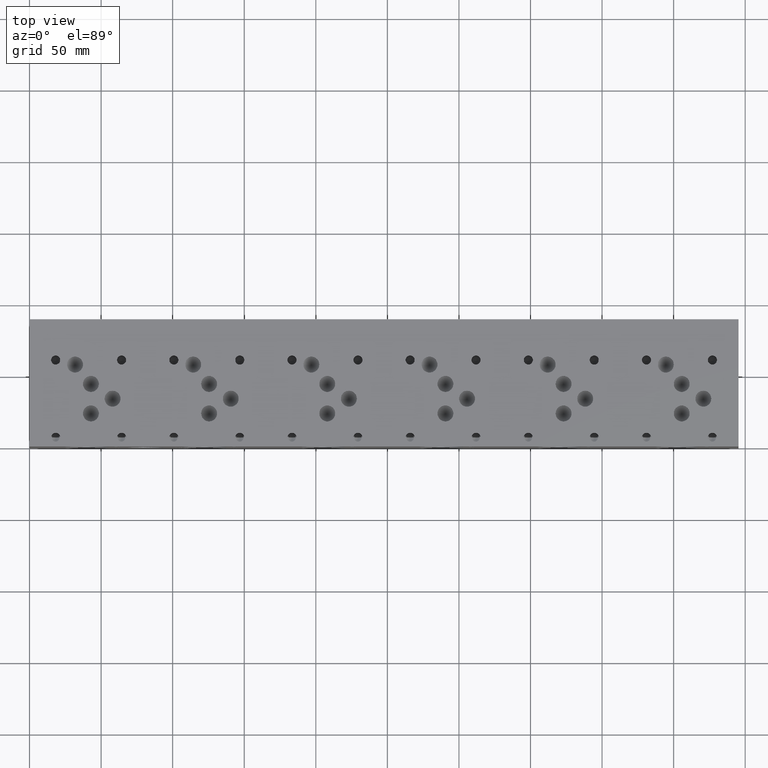
[diagram: clean part render]
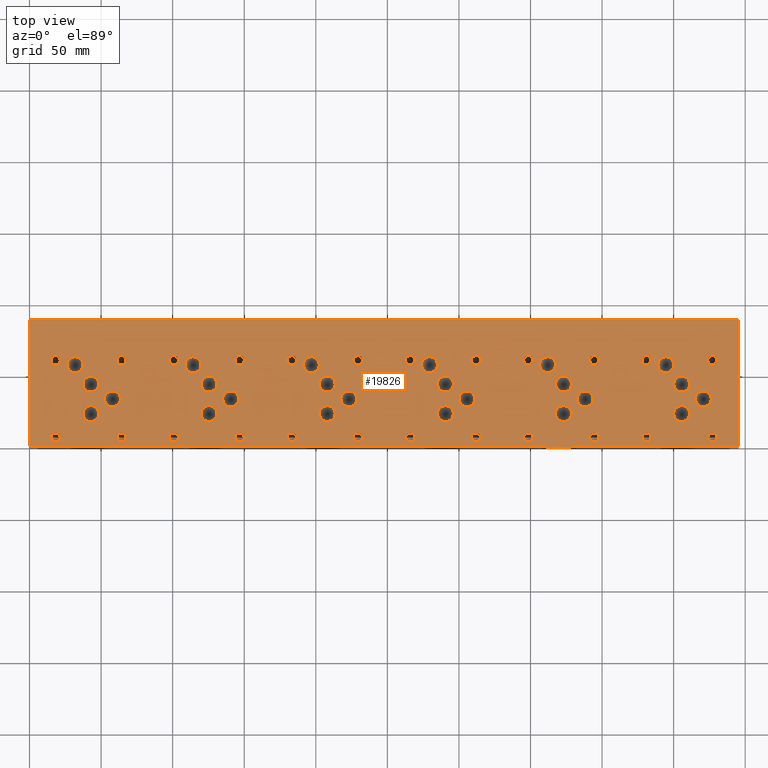
[diagram: same view with one face highlighted and labeled with its STEP entity id]
A machine part, top view. The second image highlights one B-rep face of the part: STEP entity #19826.
In plain terms, the highlighted planar face has unit normal (0, 0, 1).
Its self-contained STEP definition (entity closure, byte-faithful):
#692=CIRCLE('',#20871,3.175);
#693=CIRCLE('',#20872,3.175);
#699=CIRCLE('',#20882,3.175);
#700=CIRCLE('',#20883,3.175);
#706=CIRCLE('',#20893,3.175);
#707=CIRCLE('',#20894,3.175);
#713=CIRCLE('',#20904,3.175);
#714=CIRCLE('',#20905,3.175);
#720=CIRCLE('',#20915,3.175);
#721=CIRCLE('',#20916,3.175);
#727=CIRCLE('',#20926,3.175);
#728=CIRCLE('',#20927,3.175);
#734=CIRCLE('',#20937,3.175);
#735=CIRCLE('',#20938,3.175);
#741=CIRCLE('',#20948,3.175);
#742=CIRCLE('',#20949,3.175);
#748=CIRCLE('',#20959,3.175);
#749=CIRCLE('',#20960,3.175);
#755=CIRCLE('',#20970,3.175);
#756=CIRCLE('',#20971,3.175);
#762=CIRCLE('',#20981,3.175);
#763=CIRCLE('',#20982,3.175);
#769=CIRCLE('',#20992,3.175);
#770=CIRCLE('',#20993,3.175);
#776=CIRCLE('',#21003,3.175);
#777=CIRCLE('',#21004,3.175);
#783=CIRCLE('',#21014,3.175);
#784=CIRCLE('',#21015,3.175);
#790=CIRCLE('',#21025,3.175);
#791=CIRCLE('',#21026,3.175);
#797=CIRCLE('',#21036,3.175);
#798=CIRCLE('',#21037,3.175);
#804=CIRCLE('',#21047,3.175);
#805=CIRCLE('',#21048,3.175);
#811=CIRCLE('',#21058,3.175);
#812=CIRCLE('',#21059,3.175);
#818=CIRCLE('',#21069,3.175);
#819=CIRCLE('',#21070,3.175);
#825=CIRCLE('',#21080,3.175);
#826=CIRCLE('',#21081,3.175);
#829=CIRCLE('',#21087,5.5626);
#830=CIRCLE('',#21088,5.5626);
#833=CIRCLE('',#21093,5.5626);
#834=CIRCLE('',#21094,5.5626);
#837=CIRCLE('',#21099,5.5626);
#838=CIRCLE('',#21100,5.5626);
#841=CIRCLE('',#21105,5.5626);
#842=CIRCLE('',#21106,5.5626);
#845=CIRCLE('',#21111,5.5626);
#846=CIRCLE('',#21112,5.5626);
#849=CIRCLE('',#21117,5.5626);
#850=CIRCLE('',#21118,5.5626);
#853=CIRCLE('',#21123,5.5626);
#854=CIRCLE('',#21124,5.5626);
#857=CIRCLE('',#21129,5.5626);
#858=CIRCLE('',#21130,5.5626);
#861=CIRCLE('',#21135,5.5626);
#862=CIRCLE('',#21136,5.5626);
#865=CIRCLE('',#21141,5.5626);
#866=CIRCLE('',#21142,5.5626);
#869=CIRCLE('',#21147,5.5626);
#870=CIRCLE('',#21148,5.5626);
#873=CIRCLE('',#21153,5.5626);
#874=CIRCLE('',#21154,5.5626);
#877=CIRCLE('',#21159,5.5626);
#878=CIRCLE('',#21160,5.5626);
#881=CIRCLE('',#21165,5.5626);
#882=CIRCLE('',#21166,5.5626);
#885=CIRCLE('',#21171,5.5626);
#886=CIRCLE('',#21172,5.5626);
#889=CIRCLE('',#21177,5.5626);
#890=CIRCLE('',#21178,5.5626);
#893=CIRCLE('',#21183,5.5626);
#894=CIRCLE('',#21184,5.5626);
#897=CIRCLE('',#21189,5.5626);
#898=CIRCLE('',#21190,5.5626);
#901=CIRCLE('',#21195,5.5626);
#902=CIRCLE('',#21196,5.5626);
#905=CIRCLE('',#21201,5.5626);
#906=CIRCLE('',#21202,5.5626);
#909=CIRCLE('',#21207,5.5626);
#910=CIRCLE('',#21208,5.5626);
#913=CIRCLE('',#21213,5.5626);
#914=CIRCLE('',#21214,5.5626);
#917=CIRCLE('',#21219,5.5626);
#918=CIRCLE('',#21220,5.5626);
#921=CIRCLE('',#21225,5.5626);
#922=CIRCLE('',#21226,5.5626);
#928=CIRCLE('',#21235,3.175);
#929=CIRCLE('',#21236,3.175);
#935=CIRCLE('',#21246,3.175);
#936=CIRCLE('',#21247,3.175);
#942=CIRCLE('',#21257,3.175);
#943=CIRCLE('',#21258,3.175);
#949=CIRCLE('',#21268,3.175);
#950=CIRCLE('',#21269,3.175);
#1105=FACE_BOUND('',#4115,.T.);
#1106=FACE_BOUND('',#4116,.T.);
#1107=FACE_BOUND('',#4117,.T.);
#1108=FACE_BOUND('',#4118,.T.);
#1109=FACE_BOUND('',#4119,.T.);
#1110=FACE_BOUND('',#4120,.T.);
#1111=FACE_BOUND('',#4121,.T.);
#1112=FACE_BOUND('',#4122,.T.);
#1113=FACE_BOUND('',#4123,.T.);
#1114=FACE_BOUND('',#4124,.T.);
#1115=FACE_BOUND('',#4125,.T.);
#1116=FACE_BOUND('',#4126,.T.);
#1117=FACE_BOUND('',#4127,.T.);
#1118=FACE_BOUND('',#4128,.T.);
#1119=FACE_BOUND('',#4129,.T.);
#1120=FACE_BOUND('',#4130,.T.);
#1121=FACE_BOUND('',#4131,.T.);
#1122=FACE_BOUND('',#4132,.T.);
#1123=FACE_BOUND('',#4133,.T.);
#1124=FACE_BOUND('',#4134,.T.);
#1125=FACE_BOUND('',#4135,.T.);
#1126=FACE_BOUND('',#4136,.T.);
#1127=FACE_BOUND('',#4137,.T.);
#1128=FACE_BOUND('',#4138,.T.);
#1129=FACE_BOUND('',#4139,.T.);
#1130=FACE_BOUND('',#4140,.T.);
#1131=FACE_BOUND('',#4141,.T.);
#1132=FACE_BOUND('',#4142,.T.);
#1133=FACE_BOUND('',#4143,.T.);
#1134=FACE_BOUND('',#4144,.T.);
#1135=FACE_BOUND('',#4145,.T.);
#1136=FACE_BOUND('',#4146,.T.);
#1137=FACE_BOUND('',#4147,.T.);
#1138=FACE_BOUND('',#4148,.T.);
#1139=FACE_BOUND('',#4149,.T.);
#1140=FACE_BOUND('',#4150,.T.);
#1141=FACE_BOUND('',#4151,.T.);
#1142=FACE_BOUND('',#4152,.T.);
#1143=FACE_BOUND('',#4153,.T.);
#1144=FACE_BOUND('',#4154,.T.);
#1145=FACE_BOUND('',#4155,.T.);
#1146=FACE_BOUND('',#4156,.T.);
#1147=FACE_BOUND('',#4157,.T.);
#1148=FACE_BOUND('',#4158,.T.);
#1149=FACE_BOUND('',#4159,.T.);
#1150=FACE_BOUND('',#4160,.T.);
#1151=FACE_BOUND('',#4161,.T.);
#1152=FACE_BOUND('',#4162,.T.);
#2923=FACE_OUTER_BOUND('',#4114,.T.);
#4114=EDGE_LOOP('',(#17545,#17546,#17547,#17548));
#4115=EDGE_LOOP('',(#17549,#17550));
#4116=EDGE_LOOP('',(#17551,#17552));
#4117=EDGE_LOOP('',(#17553,#17554));
#4118=EDGE_LOOP('',(#17555,#17556));
#4119=EDGE_LOOP('',(#17557,#17558));
#4120=EDGE_LOOP('',(#17559,#17560));
#4121=EDGE_LOOP('',(#17561,#17562));
#4122=EDGE_LOOP('',(#17563,#17564));
#4123=EDGE_LOOP('',(#17565,#17566));
#4124=EDGE_LOOP('',(#17567,#17568));
#4125=EDGE_LOOP('',(#17569,#17570));
#4126=EDGE_LOOP('',(#17571,#17572));
#4127=EDGE_LOOP('',(#17573,#17574));
#4128=EDGE_LOOP('',(#17575,#17576));
#4129=EDGE_LOOP('',(#17577,#17578));
#4130=EDGE_LOOP('',(#17579,#17580));
#4131=EDGE_LOOP('',(#17581,#17582));
#4132=EDGE_LOOP('',(#17583,#17584));
#4133=EDGE_LOOP('',(#17585,#17586));
#4134=EDGE_LOOP('',(#17587,#17588));
#4135=EDGE_LOOP('',(#17589,#17590));
#4136=EDGE_LOOP('',(#17591,#17592));
#4137=EDGE_LOOP('',(#17593,#17594));
#4138=EDGE_LOOP('',(#17595,#17596));
#4139=EDGE_LOOP('',(#17597,#17598));
#4140=EDGE_LOOP('',(#17599,#17600));
#4141=EDGE_LOOP('',(#17601,#17602));
#4142=EDGE_LOOP('',(#17603,#17604));
#4143=EDGE_LOOP('',(#17605,#17606));
#4144=EDGE_LOOP('',(#17607,#17608));
#4145=EDGE_LOOP('',(#17609,#17610));
#4146=EDGE_LOOP('',(#17611,#17612));
#4147=EDGE_LOOP('',(#17613,#17614));
#4148=EDGE_LOOP('',(#17615,#17616));
#4149=EDGE_LOOP('',(#17617,#17618));
#4150=EDGE_LOOP('',(#17619,#17620));
#4151=EDGE_LOOP('',(#17621,#17622));
#4152=EDGE_LOOP('',(#17623,#17624));
#4153=EDGE_LOOP('',(#17625,#17626));
#4154=EDGE_LOOP('',(#17627,#17628));
#4155=EDGE_LOOP('',(#17629,#17630));
#4156=EDGE_LOOP('',(#17631,#17632));
#4157=EDGE_LOOP('',(#17633,#17634));
#4158=EDGE_LOOP('',(#17635,#17636));
#4159=EDGE_LOOP('',(#17637,#17638));
#4160=EDGE_LOOP('',(#17639,#17640));
#4161=EDGE_LOOP('',(#17641,#17642));
#4162=EDGE_LOOP('',(#17643,#17644));
#4222=LINE('',#26038,#5853);
#4282=LINE('',#26313,#5913);
#4591=LINE('',#29047,#6222);
#5794=LINE('',#34693,#7425);
#5853=VECTOR('',#21375,10.);
#5913=VECTOR('',#21489,10.);
#6222=VECTOR('',#21960,10.);
#7425=VECTOR('',#25771,10.);
#7476=VERTEX_POINT('',#26035);
#7477=VERTEX_POINT('',#26037);
#7536=VERTEX_POINT('',#26310);
#7537=VERTEX_POINT('',#26312);
#9051=VERTEX_POINT('',#33865);
#9052=VERTEX_POINT('',#33866);
#9059=VERTEX_POINT('',#33887);
#9060=VERTEX_POINT('',#33888);
#9067=VERTEX_POINT('',#33909);
#9068=VERTEX_POINT('',#33910);
#9075=VERTEX_POINT('',#33931);
#9076=VERTEX_POINT('',#33932);
#9083=VERTEX_POINT('',#33953);
#9084=VERTEX_POINT('',#33954);
#9091=VERTEX_POINT('',#33975);
#9092=VERTEX_POINT('',#33976);
#9099=VERTEX_POINT('',#33997);
#9100=VERTEX_POINT('',#33998);
#9107=VERTEX_POINT('',#34019);
#9108=VERTEX_POINT('',#34020);
#9115=VERTEX_POINT('',#34041);
#9116=VERTEX_POINT('',#34042);
#9123=VERTEX_POINT('',#34063);
#9124=VERTEX_POINT('',#34064);
#9131=VERTEX_POINT('',#34085);
#9132=VERTEX_POINT('',#34086);
#9139=VERTEX_POINT('',#34107);
#9140=VERTEX_POINT('',#34108);
#9147=VERTEX_POINT('',#34129);
#9148=VERTEX_POINT('',#34130);
#9155=VERTEX_POINT('',#34151);
#9156=VERTEX_POINT('',#34152);
#9163=VERTEX_POINT('',#34173);
#9164=VERTEX_POINT('',#34174);
#9171=VERTEX_POINT('',#34195);
#9172=VERTEX_POINT('',#34196);
#9179=VERTEX_POINT('',#34217);
#9180=VERTEX_POINT('',#34218);
#9187=VERTEX_POINT('',#34239);
#9188=VERTEX_POINT('',#34240);
#9195=VERTEX_POINT('',#34261);
#9196=VERTEX_POINT('',#34262);
#9203=VERTEX_POINT('',#34283);
#9204=VERTEX_POINT('',#34284);
#9208=VERTEX_POINT('',#34298);
#9209=VERTEX_POINT('',#34299);
#9213=VERTEX_POINT('',#34311);
#9214=VERTEX_POINT('',#34312);
#9218=VERTEX_POINT('',#34324);
#9219=VERTEX_POINT('',#34325);
#9223=VERTEX_POINT('',#34337);
#9224=VERTEX_POINT('',#34338);
#9228=VERTEX_POINT('',#34350);
#9229=VERTEX_POINT('',#34351);
#9233=VERTEX_POINT('',#34363);
#9234=VERTEX_POINT('',#34364);
#9238=VERTEX_POINT('',#34376);
#9239=VERTEX_POINT('',#34377);
#9243=VERTEX_POINT('',#34389);
#9244=VERTEX_POINT('',#34390);
#9248=VERTEX_POINT('',#34402);
#9249=VERTEX_POINT('',#34403);
#9253=VERTEX_POINT('',#34415);
#9254=VERTEX_POINT('',#34416);
#9258=VERTEX_POINT('',#34428);
#9259=VERTEX_POINT('',#34429);
#9263=VERTEX_POINT('',#34441);
#9264=VERTEX_POINT('',#34442);
#9268=VERTEX_POINT('',#34454);
#9269=VERTEX_POINT('',#34455);
#9273=VERTEX_POINT('',#34467);
#9274=VERTEX_POINT('',#34468);
#9278=VERTEX_POINT('',#34480);
#9279=VERTEX_POINT('',#34481);
#9283=VERTEX_POINT('',#34493);
#9284=VERTEX_POINT('',#34494);
#9288=VERTEX_POINT('',#34506);
#9289=VERTEX_POINT('',#34507);
#9293=VERTEX_POINT('',#34519);
#9294=VERTEX_POINT('',#34520);
#9298=VERTEX_POINT('',#34532);
#9299=VERTEX_POINT('',#34533);
#9303=VERTEX_POINT('',#34545);
#9304=VERTEX_POINT('',#34546);
#9308=VERTEX_POINT('',#34558);
#9309=VERTEX_POINT('',#34559);
#9313=VERTEX_POINT('',#34571);
#9314=VERTEX_POINT('',#34572);
#9318=VERTEX_POINT('',#34584);
#9319=VERTEX_POINT('',#34585);
#9323=VERTEX_POINT('',#34597);
#9324=VERTEX_POINT('',#34598);
#9331=VERTEX_POINT('',#34617);
#9332=VERTEX_POINT('',#34618);
#9339=VERTEX_POINT('',#34639);
#9340=VERTEX_POINT('',#34640);
#9347=VERTEX_POINT('',#34661);
#9348=VERTEX_POINT('',#34662);
#9355=VERTEX_POINT('',#34683);
#9356=VERTEX_POINT('',#34684);
#9431=EDGE_CURVE('',#7477,#7476,#4222,.T.);
#9515=EDGE_CURVE('',#7537,#7536,#4282,.T.);
#10078=EDGE_CURVE('',#7536,#7477,#4591,.T.);
#11741=EDGE_CURVE('',#9051,#9052,#692,.T.);
#11742=EDGE_CURVE('',#9052,#9051,#693,.T.);
#11751=EDGE_CURVE('',#9059,#9060,#699,.T.);
#11752=EDGE_CURVE('',#9060,#9059,#700,.T.);
#11761=EDGE_CURVE('',#9067,#9068,#706,.T.);
#11762=EDGE_CURVE('',#9068,#9067,#707,.T.);
#11771=EDGE_CURVE('',#9075,#9076,#713,.T.);
#11772=EDGE_CURVE('',#9076,#9075,#714,.T.);
#11781=EDGE_CURVE('',#9083,#9084,#720,.T.);
#11782=EDGE_CURVE('',#9084,#9083,#721,.T.);
#11791=EDGE_CURVE('',#9091,#9092,#727,.T.);
#11792=EDGE_CURVE('',#9092,#9091,#728,.T.);
#11801=EDGE_CURVE('',#9099,#9100,#734,.T.);
#11802=EDGE_CURVE('',#9100,#9099,#735,.T.);
#11811=EDGE_CURVE('',#9107,#9108,#741,.T.);
#11812=EDGE_CURVE('',#9108,#9107,#742,.T.);
#11821=EDGE_CURVE('',#9115,#9116,#748,.T.);
#11822=EDGE_CURVE('',#9116,#9115,#749,.T.);
#11831=EDGE_CURVE('',#9123,#9124,#755,.T.);
#11832=EDGE_CURVE('',#9124,#9123,#756,.T.);
#11841=EDGE_CURVE('',#9131,#9132,#762,.T.);
#11842=EDGE_CURVE('',#9132,#9131,#763,.T.);
#11851=EDGE_CURVE('',#9139,#9140,#769,.T.);
#11852=EDGE_CURVE('',#9140,#9139,#770,.T.);
#11861=EDGE_CURVE('',#9147,#9148,#776,.T.);
#11862=EDGE_CURVE('',#9148,#9147,#777,.T.);
#11871=EDGE_CURVE('',#9155,#9156,#783,.T.);
#11872=EDGE_CURVE('',#9156,#9155,#784,.T.);
#11881=EDGE_CURVE('',#9163,#9164,#790,.T.);
#11882=EDGE_CURVE('',#9164,#9163,#791,.T.);
#11891=EDGE_CURVE('',#9171,#9172,#797,.T.);
#11892=EDGE_CURVE('',#9172,#9171,#798,.T.);
#11901=EDGE_CURVE('',#9179,#9180,#804,.T.);
#11902=EDGE_CURVE('',#9180,#9179,#805,.T.);
#11911=EDGE_CURVE('',#9187,#9188,#811,.T.);
#11912=EDGE_CURVE('',#9188,#9187,#812,.T.);
#11921=EDGE_CURVE('',#9195,#9196,#818,.T.);
#11922=EDGE_CURVE('',#9196,#9195,#819,.T.);
#11931=EDGE_CURVE('',#9203,#9204,#825,.T.);
#11932=EDGE_CURVE('',#9204,#9203,#826,.T.);
#11938=EDGE_CURVE('',#9208,#9209,#829,.T.);
#11939=EDGE_CURVE('',#9209,#9208,#830,.T.);
#11944=EDGE_CURVE('',#9213,#9214,#833,.T.);
#11945=EDGE_CURVE('',#9214,#9213,#834,.T.);
#11950=EDGE_CURVE('',#9218,#9219,#837,.T.);
#11951=EDGE_CURVE('',#9219,#9218,#838,.T.);
#11956=EDGE_CURVE('',#9223,#9224,#841,.T.);
#11957=EDGE_CURVE('',#9224,#9223,#842,.T.);
#11962=EDGE_CURVE('',#9228,#9229,#845,.T.);
#11963=EDGE_CURVE('',#9229,#9228,#846,.T.);
#11968=EDGE_CURVE('',#9233,#9234,#849,.T.);
#11969=EDGE_CURVE('',#9234,#9233,#850,.T.);
#11974=EDGE_CURVE('',#9238,#9239,#853,.T.);
#11975=EDGE_CURVE('',#9239,#9238,#854,.T.);
#11980=EDGE_CURVE('',#9243,#9244,#857,.T.);
#11981=EDGE_CURVE('',#9244,#9243,#858,.T.);
#11986=EDGE_CURVE('',#9248,#9249,#861,.T.);
#11987=EDGE_CURVE('',#9249,#9248,#862,.T.);
#11992=EDGE_CURVE('',#9253,#9254,#865,.T.);
#11993=EDGE_CURVE('',#9254,#9253,#866,.T.);
#11998=EDGE_CURVE('',#9258,#9259,#869,.T.);
#11999=EDGE_CURVE('',#9259,#9258,#870,.T.);
#12004=EDGE_CURVE('',#9263,#9264,#873,.T.);
#12005=EDGE_CURVE('',#9264,#9263,#874,.T.);
#12010=EDGE_CURVE('',#9268,#9269,#877,.T.);
#12011=EDGE_CURVE('',#9269,#9268,#878,.T.);
#12016=EDGE_CURVE('',#9273,#9274,#881,.T.);
#12017=EDGE_CURVE('',#9274,#9273,#882,.T.);
#12022=EDGE_CURVE('',#9278,#9279,#885,.T.);
#12023=EDGE_CURVE('',#9279,#9278,#886,.T.);
#12028=EDGE_CURVE('',#9283,#9284,#889,.T.);
#12029=EDGE_CURVE('',#9284,#9283,#890,.T.);
#12034=EDGE_CURVE('',#9288,#9289,#893,.T.);
#12035=EDGE_CURVE('',#9289,#9288,#894,.T.);
#12040=EDGE_CURVE('',#9293,#9294,#897,.T.);
#12041=EDGE_CURVE('',#9294,#9293,#898,.T.);
#12046=EDGE_CURVE('',#9298,#9299,#901,.T.);
#12047=EDGE_CURVE('',#9299,#9298,#902,.T.);
#12052=EDGE_CURVE('',#9303,#9304,#905,.T.);
#12053=EDGE_CURVE('',#9304,#9303,#906,.T.);
#12058=EDGE_CURVE('',#9308,#9309,#909,.T.);
#12059=EDGE_CURVE('',#9309,#9308,#910,.T.);
#12064=EDGE_CURVE('',#9313,#9314,#913,.T.);
#12065=EDGE_CURVE('',#9314,#9313,#914,.T.);
#12070=EDGE_CURVE('',#9318,#9319,#917,.T.);
#12071=EDGE_CURVE('',#9319,#9318,#918,.T.);
#12076=EDGE_CURVE('',#9323,#9324,#921,.T.);
#12077=EDGE_CURVE('',#9324,#9323,#922,.T.);
#12085=EDGE_CURVE('',#9331,#9332,#928,.T.);
#12086=EDGE_CURVE('',#9332,#9331,#929,.T.);
#12095=EDGE_CURVE('',#9339,#9340,#935,.T.);
#12096=EDGE_CURVE('',#9340,#9339,#936,.T.);
#12105=EDGE_CURVE('',#9347,#9348,#942,.T.);
#12106=EDGE_CURVE('',#9348,#9347,#943,.T.);
#12115=EDGE_CURVE('',#9355,#9356,#949,.T.);
#12116=EDGE_CURVE('',#9356,#9355,#950,.T.);
#12120=EDGE_CURVE('',#7476,#7537,#5794,.T.);
#17545=ORIENTED_EDGE('',*,*,#10078,.T.);
#17546=ORIENTED_EDGE('',*,*,#9431,.T.);
#17547=ORIENTED_EDGE('',*,*,#12120,.T.);
#17548=ORIENTED_EDGE('',*,*,#9515,.T.);
#17549=ORIENTED_EDGE('',*,*,#11741,.T.);
#17550=ORIENTED_EDGE('',*,*,#11742,.T.);
#17551=ORIENTED_EDGE('',*,*,#11751,.T.);
#17552=ORIENTED_EDGE('',*,*,#11752,.T.);
#17553=ORIENTED_EDGE('',*,*,#11761,.T.);
#17554=ORIENTED_EDGE('',*,*,#11762,.T.);
#17555=ORIENTED_EDGE('',*,*,#11771,.T.);
#17556=ORIENTED_EDGE('',*,*,#11772,.T.);
#17557=ORIENTED_EDGE('',*,*,#11781,.T.);
#17558=ORIENTED_EDGE('',*,*,#11782,.T.);
#17559=ORIENTED_EDGE('',*,*,#11791,.T.);
#17560=ORIENTED_EDGE('',*,*,#11792,.T.);
#17561=ORIENTED_EDGE('',*,*,#11801,.T.);
#17562=ORIENTED_EDGE('',*,*,#11802,.T.);
#17563=ORIENTED_EDGE('',*,*,#11811,.T.);
#17564=ORIENTED_EDGE('',*,*,#11812,.T.);
#17565=ORIENTED_EDGE('',*,*,#11821,.T.);
#17566=ORIENTED_EDGE('',*,*,#11822,.T.);
#17567=ORIENTED_EDGE('',*,*,#11831,.T.);
#17568=ORIENTED_EDGE('',*,*,#11832,.T.);
#17569=ORIENTED_EDGE('',*,*,#11841,.T.);
#17570=ORIENTED_EDGE('',*,*,#11842,.T.);
#17571=ORIENTED_EDGE('',*,*,#11851,.T.);
#17572=ORIENTED_EDGE('',*,*,#11852,.T.);
#17573=ORIENTED_EDGE('',*,*,#11861,.T.);
#17574=ORIENTED_EDGE('',*,*,#11862,.T.);
#17575=ORIENTED_EDGE('',*,*,#11871,.T.);
#17576=ORIENTED_EDGE('',*,*,#11872,.T.);
#17577=ORIENTED_EDGE('',*,*,#11881,.T.);
#17578=ORIENTED_EDGE('',*,*,#11882,.T.);
#17579=ORIENTED_EDGE('',*,*,#11891,.T.);
#17580=ORIENTED_EDGE('',*,*,#11892,.T.);
#17581=ORIENTED_EDGE('',*,*,#11901,.T.);
#17582=ORIENTED_EDGE('',*,*,#11902,.T.);
#17583=ORIENTED_EDGE('',*,*,#11911,.T.);
#17584=ORIENTED_EDGE('',*,*,#11912,.T.);
#17585=ORIENTED_EDGE('',*,*,#11921,.T.);
#17586=ORIENTED_EDGE('',*,*,#11922,.T.);
#17587=ORIENTED_EDGE('',*,*,#11931,.T.);
#17588=ORIENTED_EDGE('',*,*,#11932,.T.);
#17589=ORIENTED_EDGE('',*,*,#11938,.T.);
#17590=ORIENTED_EDGE('',*,*,#11939,.T.);
#17591=ORIENTED_EDGE('',*,*,#11944,.T.);
#17592=ORIENTED_EDGE('',*,*,#11945,.T.);
#17593=ORIENTED_EDGE('',*,*,#11950,.T.);
#17594=ORIENTED_EDGE('',*,*,#11951,.T.);
#17595=ORIENTED_EDGE('',*,*,#11956,.T.);
#17596=ORIENTED_EDGE('',*,*,#11957,.T.);
#17597=ORIENTED_EDGE('',*,*,#11962,.T.);
#17598=ORIENTED_EDGE('',*,*,#11963,.T.);
#17599=ORIENTED_EDGE('',*,*,#11968,.T.);
#17600=ORIENTED_EDGE('',*,*,#11969,.T.);
#17601=ORIENTED_EDGE('',*,*,#11974,.T.);
#17602=ORIENTED_EDGE('',*,*,#11975,.T.);
#17603=ORIENTED_EDGE('',*,*,#11980,.T.);
#17604=ORIENTED_EDGE('',*,*,#11981,.T.);
#17605=ORIENTED_EDGE('',*,*,#11986,.T.);
#17606=ORIENTED_EDGE('',*,*,#11987,.T.);
#17607=ORIENTED_EDGE('',*,*,#11992,.T.);
#17608=ORIENTED_EDGE('',*,*,#11993,.T.);
#17609=ORIENTED_EDGE('',*,*,#11998,.T.);
#17610=ORIENTED_EDGE('',*,*,#11999,.T.);
#17611=ORIENTED_EDGE('',*,*,#12004,.T.);
#17612=ORIENTED_EDGE('',*,*,#12005,.T.);
#17613=ORIENTED_EDGE('',*,*,#12010,.T.);
#17614=ORIENTED_EDGE('',*,*,#12011,.T.);
#17615=ORIENTED_EDGE('',*,*,#12016,.T.);
#17616=ORIENTED_EDGE('',*,*,#12017,.T.);
#17617=ORIENTED_EDGE('',*,*,#12022,.T.);
#17618=ORIENTED_EDGE('',*,*,#12023,.T.);
#17619=ORIENTED_EDGE('',*,*,#12028,.T.);
#17620=ORIENTED_EDGE('',*,*,#12029,.T.);
#17621=ORIENTED_EDGE('',*,*,#12034,.T.);
#17622=ORIENTED_EDGE('',*,*,#12035,.T.);
#17623=ORIENTED_EDGE('',*,*,#12040,.T.);
#17624=ORIENTED_EDGE('',*,*,#12041,.T.);
#17625=ORIENTED_EDGE('',*,*,#12046,.T.);
#17626=ORIENTED_EDGE('',*,*,#12047,.T.);
#17627=ORIENTED_EDGE('',*,*,#12052,.T.);
#17628=ORIENTED_EDGE('',*,*,#12053,.T.);
#17629=ORIENTED_EDGE('',*,*,#12058,.T.);
#17630=ORIENTED_EDGE('',*,*,#12059,.T.);
#17631=ORIENTED_EDGE('',*,*,#12064,.T.);
#17632=ORIENTED_EDGE('',*,*,#12065,.T.);
#17633=ORIENTED_EDGE('',*,*,#12070,.T.);
#17634=ORIENTED_EDGE('',*,*,#12071,.T.);
#17635=ORIENTED_EDGE('',*,*,#12076,.T.);
#17636=ORIENTED_EDGE('',*,*,#12077,.T.);
#17637=ORIENTED_EDGE('',*,*,#12085,.T.);
#17638=ORIENTED_EDGE('',*,*,#12086,.T.);
#17639=ORIENTED_EDGE('',*,*,#12095,.T.);
#17640=ORIENTED_EDGE('',*,*,#12096,.T.);
#17641=ORIENTED_EDGE('',*,*,#12105,.T.);
#17642=ORIENTED_EDGE('',*,*,#12106,.T.);
#17643=ORIENTED_EDGE('',*,*,#12115,.T.);
#17644=ORIENTED_EDGE('',*,*,#12116,.T.);
#18145=PLANE('',#21275);
#19826=ADVANCED_FACE('',(#2923,#1105,#1106,#1107,#1108,#1109,#1110,#1111,
#1112,#1113,#1114,#1115,#1116,#1117,#1118,#1119,#1120,#1121,#1122,#1123,
#1124,#1125,#1126,#1127,#1128,#1129,#1130,#1131,#1132,#1133,#1134,#1135,
#1136,#1137,#1138,#1139,#1140,#1141,#1142,#1143,#1144,#1145,#1146,#1147,
#1148,#1149,#1150,#1151,#1152),#18145,.T.);
#20871=AXIS2_PLACEMENT_3D('',#33867,#24847,#24848);
#20872=AXIS2_PLACEMENT_3D('',#33868,#24849,#24850);
#20882=AXIS2_PLACEMENT_3D('',#33889,#24872,#24873);
#20883=AXIS2_PLACEMENT_3D('',#33890,#24874,#24875);
#20893=AXIS2_PLACEMENT_3D('',#33911,#24897,#24898);
#20894=AXIS2_PLACEMENT_3D('',#33912,#24899,#24900);
#20904=AXIS2_PLACEMENT_3D('',#33933,#24922,#24923);
#20905=AXIS2_PLACEMENT_3D('',#33934,#24924,#24925);
#20915=AXIS2_PLACEMENT_3D('',#33955,#24947,#24948);
#20916=AXIS2_PLACEMENT_3D('',#33956,#24949,#24950);
#20926=AXIS2_PLACEMENT_3D('',#33977,#24972,#24973);
#20927=AXIS2_PLACEMENT_3D('',#33978,#24974,#24975);
#20937=AXIS2_PLACEMENT_3D('',#33999,#24997,#24998);
#20938=AXIS2_PLACEMENT_3D('',#34000,#24999,#25000);
#20948=AXIS2_PLACEMENT_3D('',#34021,#25022,#25023);
#20949=AXIS2_PLACEMENT_3D('',#34022,#25024,#25025);
#20959=AXIS2_PLACEMENT_3D('',#34043,#25047,#25048);
#20960=AXIS2_PLACEMENT_3D('',#34044,#25049,#25050);
#20970=AXIS2_PLACEMENT_3D('',#34065,#25072,#25073);
#20971=AXIS2_PLACEMENT_3D('',#34066,#25074,#25075);
#20981=AXIS2_PLACEMENT_3D('',#34087,#25097,#25098);
#20982=AXIS2_PLACEMENT_3D('',#34088,#25099,#25100);
#20992=AXIS2_PLACEMENT_3D('',#34109,#25122,#25123);
#20993=AXIS2_PLACEMENT_3D('',#34110,#25124,#25125);
#21003=AXIS2_PLACEMENT_3D('',#34131,#25147,#25148);
#21004=AXIS2_PLACEMENT_3D('',#34132,#25149,#25150);
#21014=AXIS2_PLACEMENT_3D('',#34153,#25172,#25173);
#21015=AXIS2_PLACEMENT_3D('',#34154,#25174,#25175);
#21025=AXIS2_PLACEMENT_3D('',#34175,#25197,#25198);
#21026=AXIS2_PLACEMENT_3D('',#34176,#25199,#25200);
#21036=AXIS2_PLACEMENT_3D('',#34197,#25222,#25223);
#21037=AXIS2_PLACEMENT_3D('',#34198,#25224,#25225);
#21047=AXIS2_PLACEMENT_3D('',#34219,#25247,#25248);
#21048=AXIS2_PLACEMENT_3D('',#34220,#25249,#25250);
#21058=AXIS2_PLACEMENT_3D('',#34241,#25272,#25273);
#21059=AXIS2_PLACEMENT_3D('',#34242,#25274,#25275);
#21069=AXIS2_PLACEMENT_3D('',#34263,#25297,#25298);
#21070=AXIS2_PLACEMENT_3D('',#34264,#25299,#25300);
#21080=AXIS2_PLACEMENT_3D('',#34285,#25322,#25323);
#21081=AXIS2_PLACEMENT_3D('',#34286,#25324,#25325);
#21087=AXIS2_PLACEMENT_3D('',#34300,#25339,#25340);
#21088=AXIS2_PLACEMENT_3D('',#34301,#25341,#25342);
#21093=AXIS2_PLACEMENT_3D('',#34313,#25353,#25354);
#21094=AXIS2_PLACEMENT_3D('',#34314,#25355,#25356);
#21099=AXIS2_PLACEMENT_3D('',#34326,#25367,#25368);
#21100=AXIS2_PLACEMENT_3D('',#34327,#25369,#25370);
#21105=AXIS2_PLACEMENT_3D('',#34339,#25381,#25382);
#21106=AXIS2_PLACEMENT_3D('',#34340,#25383,#25384);
#21111=AXIS2_PLACEMENT_3D('',#34352,#25395,#25396);
#21112=AXIS2_PLACEMENT_3D('',#34353,#25397,#25398);
#21117=AXIS2_PLACEMENT_3D('',#34365,#25409,#25410);
#21118=AXIS2_PLACEMENT_3D('',#34366,#25411,#25412);
#21123=AXIS2_PLACEMENT_3D('',#34378,#25423,#25424);
#21124=AXIS2_PLACEMENT_3D('',#34379,#25425,#25426);
#21129=AXIS2_PLACEMENT_3D('',#34391,#25437,#25438);
#21130=AXIS2_PLACEMENT_3D('',#34392,#25439,#25440);
#21135=AXIS2_PLACEMENT_3D('',#34404,#25451,#25452);
#21136=AXIS2_PLACEMENT_3D('',#34405,#25453,#25454);
#21141=AXIS2_PLACEMENT_3D('',#34417,#25465,#25466);
#21142=AXIS2_PLACEMENT_3D('',#34418,#25467,#25468);
#21147=AXIS2_PLACEMENT_3D('',#34430,#25479,#25480);
#21148=AXIS2_PLACEMENT_3D('',#34431,#25481,#25482);
#21153=AXIS2_PLACEMENT_3D('',#34443,#25493,#25494);
#21154=AXIS2_PLACEMENT_3D('',#34444,#25495,#25496);
#21159=AXIS2_PLACEMENT_3D('',#34456,#25507,#25508);
#21160=AXIS2_PLACEMENT_3D('',#34457,#25509,#25510);
#21165=AXIS2_PLACEMENT_3D('',#34469,#25521,#25522);
#21166=AXIS2_PLACEMENT_3D('',#34470,#25523,#25524);
#21171=AXIS2_PLACEMENT_3D('',#34482,#25535,#25536);
#21172=AXIS2_PLACEMENT_3D('',#34483,#25537,#25538);
#21177=AXIS2_PLACEMENT_3D('',#34495,#25549,#25550);
#21178=AXIS2_PLACEMENT_3D('',#34496,#25551,#25552);
#21183=AXIS2_PLACEMENT_3D('',#34508,#25563,#25564);
#21184=AXIS2_PLACEMENT_3D('',#34509,#25565,#25566);
#21189=AXIS2_PLACEMENT_3D('',#34521,#25577,#25578);
#21190=AXIS2_PLACEMENT_3D('',#34522,#25579,#25580);
#21195=AXIS2_PLACEMENT_3D('',#34534,#25591,#25592);
#21196=AXIS2_PLACEMENT_3D('',#34535,#25593,#25594);
#21201=AXIS2_PLACEMENT_3D('',#34547,#25605,#25606);
#21202=AXIS2_PLACEMENT_3D('',#34548,#25607,#25608);
#21207=AXIS2_PLACEMENT_3D('',#34560,#25619,#25620);
#21208=AXIS2_PLACEMENT_3D('',#34561,#25621,#25622);
#21213=AXIS2_PLACEMENT_3D('',#34573,#25633,#25634);
#21214=AXIS2_PLACEMENT_3D('',#34574,#25635,#25636);
#21219=AXIS2_PLACEMENT_3D('',#34586,#25647,#25648);
#21220=AXIS2_PLACEMENT_3D('',#34587,#25649,#25650);
#21225=AXIS2_PLACEMENT_3D('',#34599,#25661,#25662);
#21226=AXIS2_PLACEMENT_3D('',#34600,#25663,#25664);
#21235=AXIS2_PLACEMENT_3D('',#34619,#25683,#25684);
#21236=AXIS2_PLACEMENT_3D('',#34620,#25685,#25686);
#21246=AXIS2_PLACEMENT_3D('',#34641,#25708,#25709);
#21247=AXIS2_PLACEMENT_3D('',#34642,#25710,#25711);
#21257=AXIS2_PLACEMENT_3D('',#34663,#25733,#25734);
#21258=AXIS2_PLACEMENT_3D('',#34664,#25735,#25736);
#21268=AXIS2_PLACEMENT_3D('',#34685,#25758,#25759);
#21269=AXIS2_PLACEMENT_3D('',#34686,#25760,#25761);
#21275=AXIS2_PLACEMENT_3D('',#34696,#25776,#25777);
#21375=DIRECTION('',(0.,1.,0.));
#21489=DIRECTION('',(0.,-1.,0.));
#21960=DIRECTION('',(1.,0.,0.));
#24847=DIRECTION('center_axis',(0.,0.,-1.));
#24848=DIRECTION('ref_axis',(1.,0.,0.));
#24849=DIRECTION('center_axis',(0.,0.,-1.));
#24850=DIRECTION('ref_axis',(1.,0.,0.));
#24872=DIRECTION('center_axis',(0.,0.,-1.));
#24873=DIRECTION('ref_axis',(1.,0.,0.));
#24874=DIRECTION('center_axis',(0.,0.,-1.));
#24875=DIRECTION('ref_axis',(1.,0.,0.));
#24897=DIRECTION('center_axis',(0.,0.,-1.));
#24898=DIRECTION('ref_axis',(1.,0.,0.));
#24899=DIRECTION('center_axis',(0.,0.,-1.));
#24900=DIRECTION('ref_axis',(1.,0.,0.));
#24922=DIRECTION('center_axis',(0.,0.,-1.));
#24923=DIRECTION('ref_axis',(1.,0.,0.));
#24924=DIRECTION('center_axis',(0.,0.,-1.));
#24925=DIRECTION('ref_axis',(1.,0.,0.));
#24947=DIRECTION('center_axis',(0.,0.,-1.));
#24948=DIRECTION('ref_axis',(1.,0.,0.));
#24949=DIRECTION('center_axis',(0.,0.,-1.));
#24950=DIRECTION('ref_axis',(1.,0.,0.));
#24972=DIRECTION('center_axis',(0.,0.,-1.));
#24973=DIRECTION('ref_axis',(1.,0.,0.));
#24974=DIRECTION('center_axis',(0.,0.,-1.));
#24975=DIRECTION('ref_axis',(1.,0.,0.));
#24997=DIRECTION('center_axis',(0.,0.,-1.));
#24998=DIRECTION('ref_axis',(1.,0.,0.));
#24999=DIRECTION('center_axis',(0.,0.,-1.));
#25000=DIRECTION('ref_axis',(1.,0.,0.));
#25022=DIRECTION('center_axis',(0.,0.,-1.));
#25023=DIRECTION('ref_axis',(1.,0.,0.));
#25024=DIRECTION('center_axis',(0.,0.,-1.));
#25025=DIRECTION('ref_axis',(1.,0.,0.));
#25047=DIRECTION('center_axis',(0.,0.,-1.));
#25048=DIRECTION('ref_axis',(1.,0.,0.));
#25049=DIRECTION('center_axis',(0.,0.,-1.));
#25050=DIRECTION('ref_axis',(1.,0.,0.));
#25072=DIRECTION('center_axis',(0.,0.,-1.));
#25073=DIRECTION('ref_axis',(1.,0.,0.));
#25074=DIRECTION('center_axis',(0.,0.,-1.));
#25075=DIRECTION('ref_axis',(1.,0.,0.));
#25097=DIRECTION('center_axis',(0.,0.,-1.));
#25098=DIRECTION('ref_axis',(1.,0.,0.));
#25099=DIRECTION('center_axis',(0.,0.,-1.));
#25100=DIRECTION('ref_axis',(1.,0.,0.));
#25122=DIRECTION('center_axis',(0.,0.,-1.));
#25123=DIRECTION('ref_axis',(1.,0.,0.));
#25124=DIRECTION('center_axis',(0.,0.,-1.));
#25125=DIRECTION('ref_axis',(1.,0.,0.));
#25147=DIRECTION('center_axis',(0.,0.,-1.));
#25148=DIRECTION('ref_axis',(1.,0.,0.));
#25149=DIRECTION('center_axis',(0.,0.,-1.));
#25150=DIRECTION('ref_axis',(1.,0.,0.));
#25172=DIRECTION('center_axis',(0.,0.,-1.));
#25173=DIRECTION('ref_axis',(1.,0.,0.));
#25174=DIRECTION('center_axis',(0.,0.,-1.));
#25175=DIRECTION('ref_axis',(1.,0.,0.));
#25197=DIRECTION('center_axis',(0.,0.,-1.));
#25198=DIRECTION('ref_axis',(1.,0.,0.));
#25199=DIRECTION('center_axis',(0.,0.,-1.));
#25200=DIRECTION('ref_axis',(1.,0.,0.));
#25222=DIRECTION('center_axis',(0.,0.,-1.));
#25223=DIRECTION('ref_axis',(1.,0.,0.));
#25224=DIRECTION('center_axis',(0.,0.,-1.));
#25225=DIRECTION('ref_axis',(1.,0.,0.));
#25247=DIRECTION('center_axis',(0.,0.,-1.));
#25248=DIRECTION('ref_axis',(1.,0.,0.));
#25249=DIRECTION('center_axis',(0.,0.,-1.));
#25250=DIRECTION('ref_axis',(1.,0.,0.));
#25272=DIRECTION('center_axis',(0.,0.,-1.));
#25273=DIRECTION('ref_axis',(1.,0.,0.));
#25274=DIRECTION('center_axis',(0.,0.,-1.));
#25275=DIRECTION('ref_axis',(1.,0.,0.));
#25297=DIRECTION('center_axis',(0.,0.,-1.));
#25298=DIRECTION('ref_axis',(1.,0.,0.));
#25299=DIRECTION('center_axis',(0.,0.,-1.));
#25300=DIRECTION('ref_axis',(1.,0.,0.));
#25322=DIRECTION('center_axis',(0.,0.,-1.));
#25323=DIRECTION('ref_axis',(1.,0.,0.));
#25324=DIRECTION('center_axis',(0.,0.,-1.));
#25325=DIRECTION('ref_axis',(1.,0.,0.));
#25339=DIRECTION('center_axis',(0.,0.,-1.));
#25340=DIRECTION('ref_axis',(1.,0.,0.));
#25341=DIRECTION('center_axis',(0.,0.,-1.));
#25342=DIRECTION('ref_axis',(1.,0.,0.));
#25353=DIRECTION('center_axis',(0.,0.,-1.));
#25354=DIRECTION('ref_axis',(1.,0.,0.));
#25355=DIRECTION('center_axis',(0.,0.,-1.));
#25356=DIRECTION('ref_axis',(1.,0.,0.));
#25367=DIRECTION('center_axis',(0.,0.,-1.));
#25368=DIRECTION('ref_axis',(1.,0.,0.));
#25369=DIRECTION('center_axis',(0.,0.,-1.));
#25370=DIRECTION('ref_axis',(1.,0.,0.));
#25381=DIRECTION('center_axis',(0.,0.,-1.));
#25382=DIRECTION('ref_axis',(1.,0.,0.));
#25383=DIRECTION('center_axis',(0.,0.,-1.));
#25384=DIRECTION('ref_axis',(1.,0.,0.));
#25395=DIRECTION('center_axis',(0.,0.,-1.));
#25396=DIRECTION('ref_axis',(1.,0.,0.));
#25397=DIRECTION('center_axis',(0.,0.,-1.));
#25398=DIRECTION('ref_axis',(1.,0.,0.));
#25409=DIRECTION('center_axis',(0.,0.,-1.));
#25410=DIRECTION('ref_axis',(1.,0.,0.));
#25411=DIRECTION('center_axis',(0.,0.,-1.));
#25412=DIRECTION('ref_axis',(1.,0.,0.));
#25423=DIRECTION('center_axis',(0.,0.,-1.));
#25424=DIRECTION('ref_axis',(1.,0.,0.));
#25425=DIRECTION('center_axis',(0.,0.,-1.));
#25426=DIRECTION('ref_axis',(1.,0.,0.));
#25437=DIRECTION('center_axis',(0.,0.,-1.));
#25438=DIRECTION('ref_axis',(1.,0.,0.));
#25439=DIRECTION('center_axis',(0.,0.,-1.));
#25440=DIRECTION('ref_axis',(1.,0.,0.));
#25451=DIRECTION('center_axis',(0.,0.,-1.));
#25452=DIRECTION('ref_axis',(1.,0.,0.));
#25453=DIRECTION('center_axis',(0.,0.,-1.));
#25454=DIRECTION('ref_axis',(1.,0.,0.));
#25465=DIRECTION('center_axis',(0.,0.,-1.));
#25466=DIRECTION('ref_axis',(1.,0.,0.));
#25467=DIRECTION('center_axis',(0.,0.,-1.));
#25468=DIRECTION('ref_axis',(1.,0.,0.));
#25479=DIRECTION('center_axis',(0.,0.,-1.));
#25480=DIRECTION('ref_axis',(1.,0.,0.));
#25481=DIRECTION('center_axis',(0.,0.,-1.));
#25482=DIRECTION('ref_axis',(1.,0.,0.));
#25493=DIRECTION('center_axis',(0.,0.,-1.));
#25494=DIRECTION('ref_axis',(1.,0.,0.));
#25495=DIRECTION('center_axis',(0.,0.,-1.));
#25496=DIRECTION('ref_axis',(1.,0.,0.));
#25507=DIRECTION('center_axis',(0.,0.,-1.));
#25508=DIRECTION('ref_axis',(1.,0.,0.));
#25509=DIRECTION('center_axis',(0.,0.,-1.));
#25510=DIRECTION('ref_axis',(1.,0.,0.));
#25521=DIRECTION('center_axis',(0.,0.,-1.));
#25522=DIRECTION('ref_axis',(1.,0.,0.));
#25523=DIRECTION('center_axis',(0.,0.,-1.));
#25524=DIRECTION('ref_axis',(1.,0.,0.));
#25535=DIRECTION('center_axis',(0.,0.,-1.));
#25536=DIRECTION('ref_axis',(1.,0.,0.));
#25537=DIRECTION('center_axis',(0.,0.,-1.));
#25538=DIRECTION('ref_axis',(1.,0.,0.));
#25549=DIRECTION('center_axis',(0.,0.,-1.));
#25550=DIRECTION('ref_axis',(1.,0.,0.));
#25551=DIRECTION('center_axis',(0.,0.,-1.));
#25552=DIRECTION('ref_axis',(1.,0.,0.));
#25563=DIRECTION('center_axis',(0.,0.,-1.));
#25564=DIRECTION('ref_axis',(1.,0.,0.));
#25565=DIRECTION('center_axis',(0.,0.,-1.));
#25566=DIRECTION('ref_axis',(1.,0.,0.));
#25577=DIRECTION('center_axis',(0.,0.,-1.));
#25578=DIRECTION('ref_axis',(1.,0.,0.));
#25579=DIRECTION('center_axis',(0.,0.,-1.));
#25580=DIRECTION('ref_axis',(1.,0.,0.));
#25591=DIRECTION('center_axis',(0.,0.,-1.));
#25592=DIRECTION('ref_axis',(1.,0.,0.));
#25593=DIRECTION('center_axis',(0.,0.,-1.));
#25594=DIRECTION('ref_axis',(1.,0.,0.));
#25605=DIRECTION('center_axis',(0.,0.,-1.));
#25606=DIRECTION('ref_axis',(1.,0.,0.));
#25607=DIRECTION('center_axis',(0.,0.,-1.));
#25608=DIRECTION('ref_axis',(1.,0.,0.));
#25619=DIRECTION('center_axis',(0.,0.,-1.));
#25620=DIRECTION('ref_axis',(1.,0.,0.));
#25621=DIRECTION('center_axis',(0.,0.,-1.));
#25622=DIRECTION('ref_axis',(1.,0.,0.));
#25633=DIRECTION('center_axis',(0.,0.,-1.));
#25634=DIRECTION('ref_axis',(1.,0.,0.));
#25635=DIRECTION('center_axis',(0.,0.,-1.));
#25636=DIRECTION('ref_axis',(1.,0.,0.));
#25647=DIRECTION('center_axis',(0.,0.,-1.));
#25648=DIRECTION('ref_axis',(1.,0.,0.));
#25649=DIRECTION('center_axis',(0.,0.,-1.));
#25650=DIRECTION('ref_axis',(1.,0.,0.));
#25661=DIRECTION('center_axis',(0.,0.,-1.));
#25662=DIRECTION('ref_axis',(1.,0.,0.));
#25663=DIRECTION('center_axis',(0.,0.,-1.));
#25664=DIRECTION('ref_axis',(1.,0.,0.));
#25683=DIRECTION('center_axis',(0.,0.,-1.));
#25684=DIRECTION('ref_axis',(1.,0.,0.));
#25685=DIRECTION('center_axis',(0.,0.,-1.));
#25686=DIRECTION('ref_axis',(1.,0.,0.));
#25708=DIRECTION('center_axis',(0.,0.,-1.));
#25709=DIRECTION('ref_axis',(1.,0.,0.));
#25710=DIRECTION('center_axis',(0.,0.,-1.));
#25711=DIRECTION('ref_axis',(1.,0.,0.));
#25733=DIRECTION('center_axis',(0.,0.,-1.));
#25734=DIRECTION('ref_axis',(1.,0.,0.));
#25735=DIRECTION('center_axis',(0.,0.,-1.));
#25736=DIRECTION('ref_axis',(1.,0.,0.));
#25758=DIRECTION('center_axis',(0.,0.,-1.));
#25759=DIRECTION('ref_axis',(1.,0.,0.));
#25760=DIRECTION('center_axis',(0.,0.,-1.));
#25761=DIRECTION('ref_axis',(1.,0.,0.));
#25771=DIRECTION('',(-1.,0.,0.));
#25776=DIRECTION('center_axis',(0.,0.,1.));
#25777=DIRECTION('ref_axis',(1.,0.,0.));
#26035=CARTESIAN_POINT('',(495.3,88.9,88.9));
#26037=CARTESIAN_POINT('',(495.3,0.,88.9));
#26038=CARTESIAN_POINT('',(495.3,0.,88.9));
#26310=CARTESIAN_POINT('',(0.,0.,88.9));
#26312=CARTESIAN_POINT('',(0.,88.9,88.9));
#26313=CARTESIAN_POINT('',(0.,88.9,88.9));
#29047=CARTESIAN_POINT('',(0.,0.,88.9));
#33865=CARTESIAN_POINT('',(480.2124,6.35,88.9));
#33866=CARTESIAN_POINT('',(473.8624,6.35,88.9));
#33867=CARTESIAN_POINT('Origin',(477.0374,6.35,88.9));
#33868=CARTESIAN_POINT('Origin',(477.0374,6.35,88.9));
#33887=CARTESIAN_POINT('',(434.1622,60.325,88.9));
#33888=CARTESIAN_POINT('',(427.8122,60.325,88.9));
#33889=CARTESIAN_POINT('Origin',(430.9872,60.325,88.9));
#33890=CARTESIAN_POINT('Origin',(430.9872,60.325,88.9));
#33909=CARTESIAN_POINT('',(397.6624,6.35,88.9));
#33910=CARTESIAN_POINT('',(391.3124,6.35,88.9));
#33911=CARTESIAN_POINT('Origin',(394.4874,6.35,88.9));
#33912=CARTESIAN_POINT('Origin',(394.4874,6.35,88.9));
#33931=CARTESIAN_POINT('',(351.6122,60.325,88.9));
#33932=CARTESIAN_POINT('',(345.2622,60.325,88.9));
#33933=CARTESIAN_POINT('Origin',(348.4372,60.325,88.9));
#33934=CARTESIAN_POINT('Origin',(348.4372,60.325,88.9));
#33953=CARTESIAN_POINT('',(315.1124,6.35,88.9));
#33954=CARTESIAN_POINT('',(308.7624,6.35,88.9));
#33955=CARTESIAN_POINT('Origin',(311.9374,6.35,88.9));
#33956=CARTESIAN_POINT('Origin',(311.9374,6.35,88.9));
#33975=CARTESIAN_POINT('',(269.0622,60.325,88.9));
#33976=CARTESIAN_POINT('',(262.7122,60.325,88.9));
#33977=CARTESIAN_POINT('Origin',(265.8872,60.325,88.9));
#33978=CARTESIAN_POINT('Origin',(265.8872,60.325,88.9));
#33997=CARTESIAN_POINT('',(232.5624,6.35,88.9));
#33998=CARTESIAN_POINT('',(226.2124,6.35,88.9));
#33999=CARTESIAN_POINT('Origin',(229.3874,6.35,88.9));
#34000=CARTESIAN_POINT('Origin',(229.3874,6.35,88.9));
#34019=CARTESIAN_POINT('',(186.5122,60.325,88.9));
#34020=CARTESIAN_POINT('',(180.1622,60.325,88.9));
#34021=CARTESIAN_POINT('Origin',(183.3372,60.325,88.9));
#34022=CARTESIAN_POINT('Origin',(183.3372,60.325,88.9));
#34041=CARTESIAN_POINT('',(150.0124,6.35,88.9));
#34042=CARTESIAN_POINT('',(143.6624,6.35,88.9));
#34043=CARTESIAN_POINT('Origin',(146.8374,6.35,88.9));
#34044=CARTESIAN_POINT('Origin',(146.8374,6.35,88.9));
#34063=CARTESIAN_POINT('',(103.9622,60.325,88.9));
#34064=CARTESIAN_POINT('',(97.6122,60.325,88.9));
#34065=CARTESIAN_POINT('Origin',(100.7872,60.325,88.9));
#34066=CARTESIAN_POINT('Origin',(100.7872,60.325,88.9));
#34085=CARTESIAN_POINT('',(150.0124,60.325,88.9));
#34086=CARTESIAN_POINT('',(143.6624,60.325,88.9));
#34087=CARTESIAN_POINT('Origin',(146.8374,60.325,88.9));
#34088=CARTESIAN_POINT('Origin',(146.8374,60.325,88.9));
#34107=CARTESIAN_POINT('',(103.9622,6.35,88.9));
#34108=CARTESIAN_POINT('',(97.6122,6.35,88.9));
#34109=CARTESIAN_POINT('Origin',(100.7872,6.35,88.9));
#34110=CARTESIAN_POINT('Origin',(100.7872,6.35,88.9));
#34129=CARTESIAN_POINT('',(232.5624,60.325,88.9));
#34130=CARTESIAN_POINT('',(226.2124,60.325,88.9));
#34131=CARTESIAN_POINT('Origin',(229.3874,60.325,88.9));
#34132=CARTESIAN_POINT('Origin',(229.3874,60.325,88.9));
#34151=CARTESIAN_POINT('',(186.5122,6.35,88.9));
#34152=CARTESIAN_POINT('',(180.1622,6.35,88.9));
#34153=CARTESIAN_POINT('Origin',(183.3372,6.35,88.9));
#34154=CARTESIAN_POINT('Origin',(183.3372,6.35,88.9));
#34173=CARTESIAN_POINT('',(315.1124,60.325,88.9));
#34174=CARTESIAN_POINT('',(308.7624,60.325,88.9));
#34175=CARTESIAN_POINT('Origin',(311.9374,60.325,88.9));
#34176=CARTESIAN_POINT('Origin',(311.9374,60.325,88.9));
#34195=CARTESIAN_POINT('',(269.0622,6.35,88.9));
#34196=CARTESIAN_POINT('',(262.7122,6.35,88.9));
#34197=CARTESIAN_POINT('Origin',(265.8872,6.35,88.9));
#34198=CARTESIAN_POINT('Origin',(265.8872,6.35,88.9));
#34217=CARTESIAN_POINT('',(397.6624,60.325,88.9));
#34218=CARTESIAN_POINT('',(391.3124,60.325,88.9));
#34219=CARTESIAN_POINT('Origin',(394.4874,60.325,88.9));
#34220=CARTESIAN_POINT('Origin',(394.4874,60.325,88.9));
#34239=CARTESIAN_POINT('',(351.6122,6.35,88.9));
#34240=CARTESIAN_POINT('',(345.2622,6.35,88.9));
#34241=CARTESIAN_POINT('Origin',(348.4372,6.35,88.9));
#34242=CARTESIAN_POINT('Origin',(348.4372,6.35,88.9));
#34261=CARTESIAN_POINT('',(480.2124,60.325,88.9));
#34262=CARTESIAN_POINT('',(473.8624,60.325,88.9));
#34263=CARTESIAN_POINT('Origin',(477.0374,60.325,88.9));
#34264=CARTESIAN_POINT('Origin',(477.0374,60.325,88.9));
#34283=CARTESIAN_POINT('',(434.1622,6.35,88.9));
#34284=CARTESIAN_POINT('',(427.8122,6.35,88.9));
#34285=CARTESIAN_POINT('Origin',(430.9872,6.35,88.9));
#34286=CARTESIAN_POINT('Origin',(430.9872,6.35,88.9));
#34298=CARTESIAN_POINT('',(461.1878,43.6372,88.9));
#34299=CARTESIAN_POINT('',(450.0626,43.6372,88.9));
#34300=CARTESIAN_POINT('Origin',(455.6252,43.6372,88.9));
#34301=CARTESIAN_POINT('Origin',(455.6252,43.6372,88.9));
#34311=CARTESIAN_POINT('',(476.2754,33.3248,88.9));
#34312=CARTESIAN_POINT('',(465.1502,33.3248,88.9));
#34313=CARTESIAN_POINT('Origin',(470.7128,33.3248,88.9));
#34314=CARTESIAN_POINT('Origin',(470.7128,33.3248,88.9));
#34324=CARTESIAN_POINT('',(378.6378,43.6372,88.9));
#34325=CARTESIAN_POINT('',(367.5126,43.6372,88.9));
#34326=CARTESIAN_POINT('Origin',(373.0752,43.6372,88.9));
#34327=CARTESIAN_POINT('Origin',(373.0752,43.6372,88.9));
#34337=CARTESIAN_POINT('',(393.7254,33.3248,88.9));
#34338=CARTESIAN_POINT('',(382.6002,33.3248,88.9));
#34339=CARTESIAN_POINT('Origin',(388.1628,33.3248,88.9));
#34340=CARTESIAN_POINT('Origin',(388.1628,33.3248,88.9));
#34350=CARTESIAN_POINT('',(296.0878,43.6372,88.9));
#34351=CARTESIAN_POINT('',(284.9626,43.6372,88.9));
#34352=CARTESIAN_POINT('Origin',(290.5252,43.6372,88.9));
#34353=CARTESIAN_POINT('Origin',(290.5252,43.6372,88.9));
#34363=CARTESIAN_POINT('',(311.1754,33.3248,88.9));
#34364=CARTESIAN_POINT('',(300.0502,33.3248,88.9));
#34365=CARTESIAN_POINT('Origin',(305.6128,33.3248,88.9));
#34366=CARTESIAN_POINT('Origin',(305.6128,33.3248,88.9));
#34376=CARTESIAN_POINT('',(213.5378,43.6372,88.9));
#34377=CARTESIAN_POINT('',(202.4126,43.6372,88.9));
#34378=CARTESIAN_POINT('Origin',(207.9752,43.6372,88.9));
#34379=CARTESIAN_POINT('Origin',(207.9752,43.6372,88.9));
#34389=CARTESIAN_POINT('',(228.6254,33.3248,88.9));
#34390=CARTESIAN_POINT('',(217.5002,33.3248,88.9));
#34391=CARTESIAN_POINT('Origin',(223.0628,33.3248,88.9));
#34392=CARTESIAN_POINT('Origin',(223.0628,33.3248,88.9));
#34402=CARTESIAN_POINT('',(130.9878,43.6372,88.9));
#34403=CARTESIAN_POINT('',(119.8626,43.6372,88.9));
#34404=CARTESIAN_POINT('Origin',(125.4252,43.6372,88.9));
#34405=CARTESIAN_POINT('Origin',(125.4252,43.6372,88.9));
#34415=CARTESIAN_POINT('',(146.0754,33.3248,88.9));
#34416=CARTESIAN_POINT('',(134.9502,33.3248,88.9));
#34417=CARTESIAN_POINT('Origin',(140.5128,33.3248,88.9));
#34418=CARTESIAN_POINT('Origin',(140.5128,33.3248,88.9));
#34428=CARTESIAN_POINT('',(48.4251,43.64228,88.9));
#34429=CARTESIAN_POINT('',(37.2999,43.64228,88.9));
#34430=CARTESIAN_POINT('Origin',(42.8625,43.64228,88.9));
#34431=CARTESIAN_POINT('Origin',(42.8625,43.64228,88.9));
#34441=CARTESIAN_POINT('',(63.5254,33.3248,88.9));
#34442=CARTESIAN_POINT('',(52.4002,33.3248,88.9));
#34443=CARTESIAN_POINT('Origin',(57.9628,33.3248,88.9));
#34444=CARTESIAN_POINT('Origin',(57.9628,33.3248,88.9));
#34454=CARTESIAN_POINT('',(37.3126,57.15,88.9));
#34455=CARTESIAN_POINT('',(26.1874,57.15,88.9));
#34456=CARTESIAN_POINT('Origin',(31.75,57.15,88.9));
#34457=CARTESIAN_POINT('Origin',(31.75,57.15,88.9));
#34467=CARTESIAN_POINT('',(48.43018,23.00732,88.9));
#34468=CARTESIAN_POINT('',(37.30498,23.00732,88.9));
#34469=CARTESIAN_POINT('Origin',(42.86758,23.00732,88.9));
#34470=CARTESIAN_POINT('Origin',(42.86758,23.00732,88.9));
#34480=CARTESIAN_POINT('',(119.8626,57.15,88.9));
#34481=CARTESIAN_POINT('',(108.7374,57.15,88.9));
#34482=CARTESIAN_POINT('Origin',(114.3,57.15,88.9));
#34483=CARTESIAN_POINT('Origin',(114.3,57.15,88.9));
#34493=CARTESIAN_POINT('',(130.9878,23.0124,88.9));
#34494=CARTESIAN_POINT('',(119.8626,23.0124,88.9));
#34495=CARTESIAN_POINT('Origin',(125.4252,23.0124,88.9));
#34496=CARTESIAN_POINT('Origin',(125.4252,23.0124,88.9));
#34506=CARTESIAN_POINT('',(202.4126,57.15,88.9));
#34507=CARTESIAN_POINT('',(191.2874,57.15,88.9));
#34508=CARTESIAN_POINT('Origin',(196.85,57.15,88.9));
#34509=CARTESIAN_POINT('Origin',(196.85,57.15,88.9));
#34519=CARTESIAN_POINT('',(213.5378,23.0124,88.9));
#34520=CARTESIAN_POINT('',(202.4126,23.0124,88.9));
#34521=CARTESIAN_POINT('Origin',(207.9752,23.0124,88.9));
#34522=CARTESIAN_POINT('Origin',(207.9752,23.0124,88.9));
#34532=CARTESIAN_POINT('',(284.9626,57.15,88.9));
#34533=CARTESIAN_POINT('',(273.8374,57.15,88.9));
#34534=CARTESIAN_POINT('Origin',(279.4,57.15,88.9));
#34535=CARTESIAN_POINT('Origin',(279.4,57.15,88.9));
#34545=CARTESIAN_POINT('',(296.0878,23.0124,88.9));
#34546=CARTESIAN_POINT('',(284.9626,23.0124,88.9));
#34547=CARTESIAN_POINT('Origin',(290.5252,23.0124,88.9));
#34548=CARTESIAN_POINT('Origin',(290.5252,23.0124,88.9));
#34558=CARTESIAN_POINT('',(367.5126,57.15,88.9));
#34559=CARTESIAN_POINT('',(356.3874,57.15,88.9));
#34560=CARTESIAN_POINT('Origin',(361.95,57.15,88.9));
#34561=CARTESIAN_POINT('Origin',(361.95,57.15,88.9));
#34571=CARTESIAN_POINT('',(378.6378,23.0124,88.9));
#34572=CARTESIAN_POINT('',(367.5126,23.0124,88.9));
#34573=CARTESIAN_POINT('Origin',(373.0752,23.0124,88.9));
#34574=CARTESIAN_POINT('Origin',(373.0752,23.0124,88.9));
#34584=CARTESIAN_POINT('',(450.0626,57.15,88.9));
#34585=CARTESIAN_POINT('',(438.9374,57.15,88.9));
#34586=CARTESIAN_POINT('Origin',(444.5,57.15,88.9));
#34587=CARTESIAN_POINT('Origin',(444.5,57.15,88.9));
#34597=CARTESIAN_POINT('',(461.1878,23.0124,88.9));
#34598=CARTESIAN_POINT('',(450.0626,23.0124,88.9));
#34599=CARTESIAN_POINT('Origin',(455.6252,23.0124,88.9));
#34600=CARTESIAN_POINT('Origin',(455.6252,23.0124,88.9));
#34617=CARTESIAN_POINT('',(67.4624,6.3627,88.9));
#34618=CARTESIAN_POINT('',(61.1124,6.3627,88.9));
#34619=CARTESIAN_POINT('Origin',(64.2874,6.3627,88.9));
#34620=CARTESIAN_POINT('Origin',(64.2874,6.3627,88.9));
#34639=CARTESIAN_POINT('',(21.4122,60.325,88.9));
#34640=CARTESIAN_POINT('',(15.0622,60.325,88.9));
#34641=CARTESIAN_POINT('Origin',(18.2372,60.325,88.9));
#34642=CARTESIAN_POINT('Origin',(18.2372,60.325,88.9));
#34661=CARTESIAN_POINT('',(67.4624,60.325,88.9));
#34662=CARTESIAN_POINT('',(61.1124,60.325,88.9));
#34663=CARTESIAN_POINT('Origin',(64.2874,60.325,88.9));
#34664=CARTESIAN_POINT('Origin',(64.2874,60.325,88.9));
#34683=CARTESIAN_POINT('',(21.4122,6.35,88.9));
#34684=CARTESIAN_POINT('',(15.0622,6.35,88.9));
#34685=CARTESIAN_POINT('Origin',(18.2372,6.35,88.9));
#34686=CARTESIAN_POINT('Origin',(18.2372,6.35,88.9));
#34693=CARTESIAN_POINT('',(495.3,88.9,88.9));
#34696=CARTESIAN_POINT('Origin',(247.65,44.45,88.9));